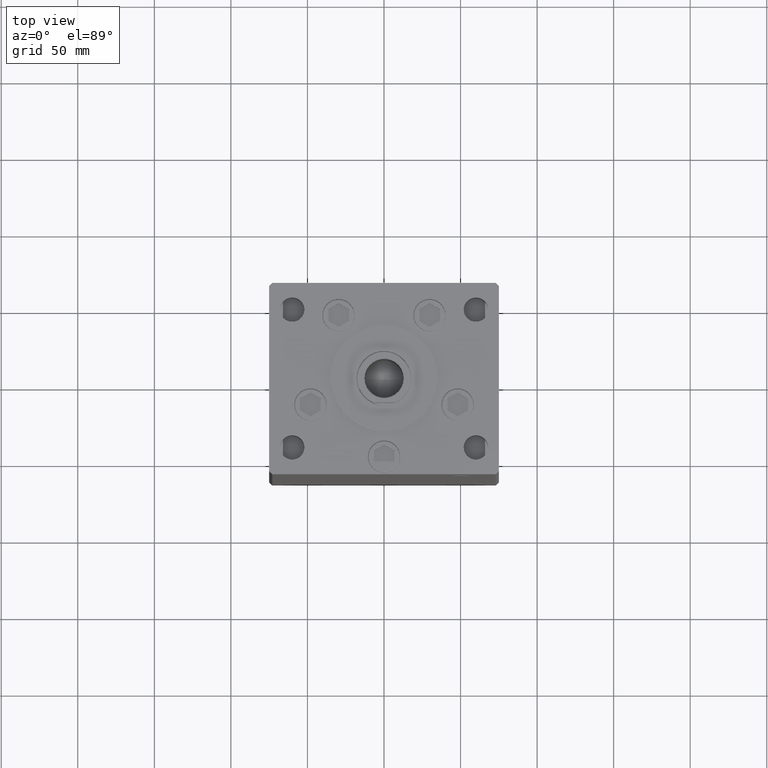
[diagram: clean part render]
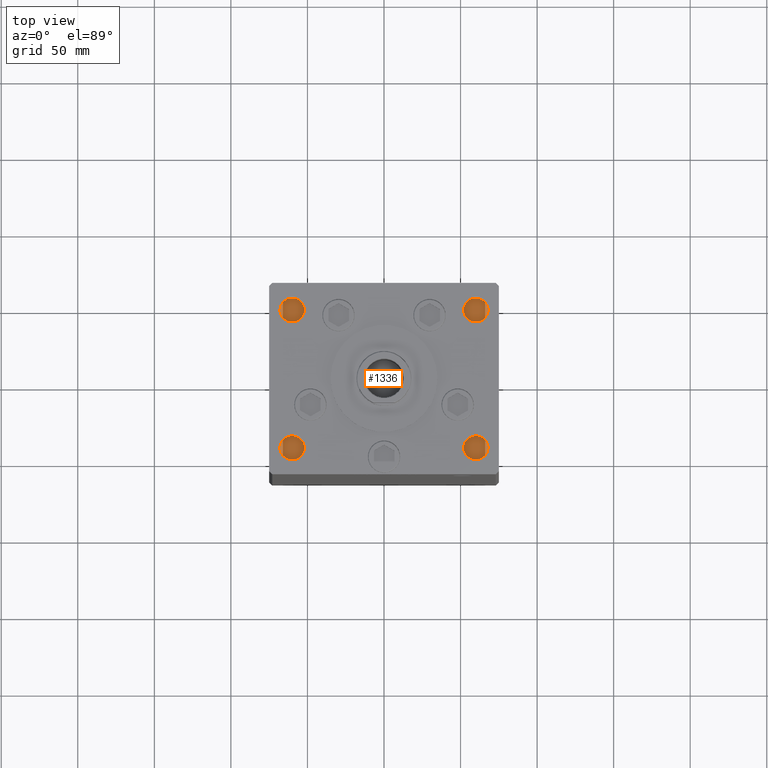
[diagram: same view with one face highlighted and labeled with its STEP entity id]
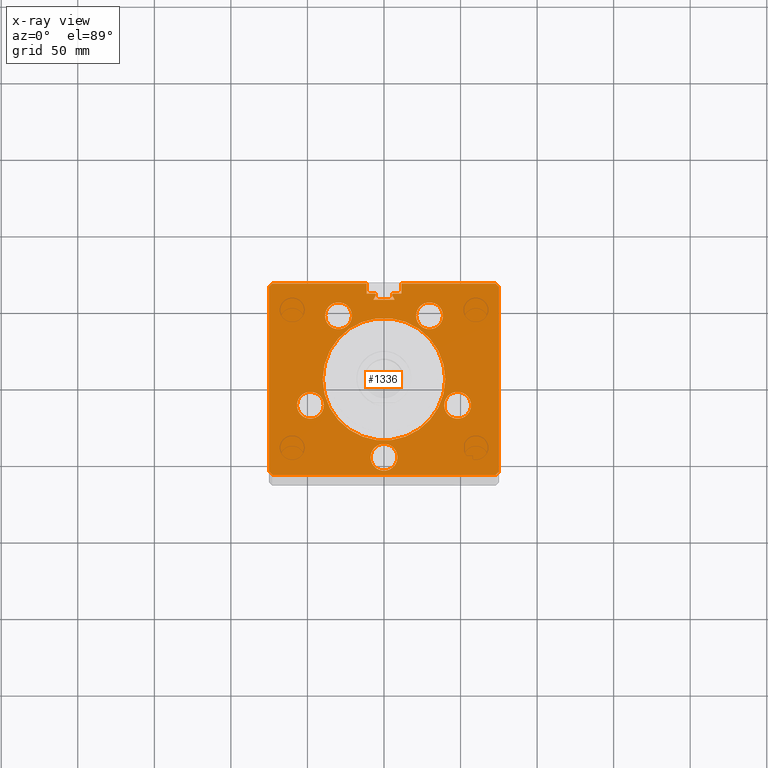
[diagram: x-ray of the same camera — body ghosted, the highlighted face saturated]
A machine part, top view. The second image highlights one B-rep face of the part: STEP entity #1336.
The next image is the same camera in x-ray: the body ghosted, the highlighted face saturated — about 0% of this face is hidden behind the body in this view.
In plain terms, the highlighted planar face has unit normal (0, 0, -1).
Its self-contained STEP definition (entity closure, byte-faithful):
#52 = VECTOR ( 'NONE', #40078, 1000.000000000000000 ) ;
#159 = LINE ( 'NONE', #31782, #52127 ) ;
#290 = VERTEX_POINT ( 'NONE', #27565 ) ;
#529 = CIRCLE ( 'NONE', #8970, 8.750000000000000000 ) ;
#699 = VERTEX_POINT ( 'NONE', #27439 ) ;
#764 = VECTOR ( 'NONE', #22030, 1000.000000000000000 ) ;
#774 = AXIS2_PLACEMENT_3D ( 'NONE', #49471, #10483, #46554 ) ;
#1010 = ORIENTED_EDGE ( 'NONE', *, *, #14555, .F. ) ;
#1336 = ADVANCED_FACE ( 'NONE', ( #14596, #6442, #26484, #5670, #29640, #45966, #38306 ), #22497, .F. ) ;
#1591 = CARTESIAN_POINT ( 'NONE',  ( 0.000000000000000000, 0.000000000000000000, 367.0000000000000000 ) ) ;
#1671 = CIRCLE ( 'NONE', #50448, 8.750000000000000000 ) ;
#1843 = CARTESIAN_POINT ( 'NONE',  ( 11.25000000000000178, 55.99999999999999289, 367.0000000000000000 ) ) ;
#1967 = CARTESIAN_POINT ( 'NONE',  ( 75.00000000000001421, 60.50000000000000000, 367.0000000000000000 ) ) ;
#2140 = EDGE_CURVE ( 'NONE', #19632, #45822, #30423, .T. ) ;
#2162 = VERTEX_POINT ( 'NONE', #12931 ) ;
#2221 = DIRECTION ( 'NONE',  ( -2.293849224432141861E-16, -1.000000000000000000, 0.000000000000000000 ) ) ;
#2527 = EDGE_CURVE ( 'NONE', #37859, #45580, #23500, .T. ) ;
#2721 = VERTEX_POINT ( 'NONE', #15976 ) ;
#3052 = CARTESIAN_POINT ( 'NONE',  ( -48.08326112068523628, -17.00000000000000000, 367.0000000000000000 ) ) ;
#3204 = CARTESIAN_POINT ( 'NONE',  ( 6.183333333334001480, 55.06666666666598786, 367.0000000000000000 ) ) ;
#3628 = AXIS2_PLACEMENT_3D ( 'NONE', #8127, #16789, #52131 ) ;
#3657 = DIRECTION ( 'NONE',  ( 1.000000000000000000, 0.000000000000000000, 0.000000000000000000 ) ) ;
#3809 = LINE ( 'NONE', #24613, #42550 ) ;
#3973 = DIRECTION ( 'NONE',  ( 1.000000000000000000, 0.000000000000000000, 0.000000000000000000 ) ) ;
#4192 = VECTOR ( 'NONE', #3973, 1000.000000000000000 ) ;
#4246 = VECTOR ( 'NONE', #51578, 1000.000000000000000 ) ;
#5001 = CARTESIAN_POINT ( 'NONE',  ( -11.25000000000000178, 62.49999999999999289, 367.0000000000000000 ) ) ;
#5043 = ORIENTED_EDGE ( 'NONE', *, *, #2140, .F. ) ;
#5111 = CIRCLE ( 'NONE', #37929, 8.750000000000000000 ) ;
#5207 = LINE ( 'NONE', #33394, #39768 ) ;
#5670 = FACE_BOUND ( 'NONE', #7730, .T. ) ;
#5846 = ORIENTED_EDGE ( 'NONE', *, *, #40163, .T. ) ;
#5928 = AXIS2_PLACEMENT_3D ( 'NONE', #22204, #10616, #43005 ) ;
#5984 = DIRECTION ( 'NONE',  ( 0.000000000000000000, 0.000000000000000000, 1.000000000000000000 ) ) ;
#6077 = AXIS2_PLACEMENT_3D ( 'NONE', #22511, #6198, #41772 ) ;
#6198 = DIRECTION ( 'NONE',  ( 0.000000000000000000, 0.000000000000000000, 1.000000000000000000 ) ) ;
#6313 = DIRECTION ( 'NONE',  ( 0.000000000000000000, 0.000000000000000000, 1.000000000000000000 ) ) ;
#6442 = FACE_BOUND ( 'NONE', #36698, .T. ) ;
#6947 = CARTESIAN_POINT ( 'NONE',  ( -29.73102073172060500, 41.43749999999999289, 367.0000000000000000 ) ) ;
#7170 = CARTESIAN_POINT ( 'NONE',  ( 6.876153656360466826, 51.99999999999986500, 367.0000000000000000 ) ) ;
#7491 = ORIENTED_EDGE ( 'NONE', *, *, #12374, .F. ) ;
#7623 = EDGE_CURVE ( 'NONE', #35388, #47255, #40934, .T. ) ;
#7730 = EDGE_LOOP ( 'NONE', ( #29439, #14528 ) ) ;
#7850 = CARTESIAN_POINT ( 'NONE',  ( -11.25000000000000178, 62.49999999999999289, 367.0000000000000000 ) ) ;
#8002 = EDGE_CURVE ( 'NONE', #36408, #12300, #17762, .T. ) ;
#8066 = VERTEX_POINT ( 'NONE', #7850 ) ;
#8127 = CARTESIAN_POINT ( 'NONE',  ( -6.183333333334001480, 55.06666666666598786, 367.0000000000000000 ) ) ;
#8138 = VECTOR ( 'NONE', #19469, 1000.000000000000000 ) ;
#8361 = VERTEX_POINT ( 'NONE', #29678 ) ;
#8552 = DIRECTION ( 'NONE',  ( 0.5000000000000016653, -0.8660254037844377084, 0.000000000000000000 ) ) ;
#8737 = EDGE_CURVE ( 'NONE', #14582, #24960, #32115, .T. ) ;
#8834 = LINE ( 'NONE', #24899, #39036 ) ;
#8970 = AXIS2_PLACEMENT_3D ( 'NONE', #19447, #23412, #3657 ) ;
#9065 = ORIENTED_EDGE ( 'NONE', *, *, #46245, .F. ) ;
#9084 = ORIENTED_EDGE ( 'NONE', *, *, #19905, .T. ) ;
#9340 = ORIENTED_EDGE ( 'NONE', *, *, #26878, .F. ) ;
#9474 = EDGE_CURVE ( 'NONE', #45822, #2721, #33571, .T. ) ;
#9594 = ORIENTED_EDGE ( 'NONE', *, *, #42329, .F. ) ;
#9602 = ORIENTED_EDGE ( 'NONE', *, *, #2527, .F. ) ;
#9723 = CARTESIAN_POINT ( 'NONE',  ( 0.000000000000000000, 0.000000000000000000, 367.0000000000000000 ) ) ;
#9971 = DIRECTION ( 'NONE',  ( -0.000000000000000000, 0.000000000000000000, 1.000000000000000000 ) ) ;
#10223 = VECTOR ( 'NONE', #2221, 1000.000000000000000 ) ;
#10400 = CARTESIAN_POINT ( 'NONE',  ( 0.000000000000000000, 0.000000000000000000, 367.0000000000000000 ) ) ;
#10412 = DIRECTION ( 'NONE',  ( 0.7071067811865474617, -0.7071067811865474617, 0.000000000000000000 ) ) ;
#10483 = DIRECTION ( 'NONE',  ( 0.000000000000000000, 0.000000000000000000, 1.000000000000000000 ) ) ;
#10616 = DIRECTION ( 'NONE',  ( 0.000000000000000000, 0.000000000000000000, 1.000000000000000000 ) ) ;
#11022 = ORIENTED_EDGE ( 'NONE', *, *, #16986, .T. ) ;
#11150 = ORIENTED_EDGE ( 'NONE', *, *, #18624, .T. ) ;
#11572 = CARTESIAN_POINT ( 'NONE',  ( -6.183333333334001480, 55.99999999999999289, 367.0000000000000000 ) ) ;
#11599 = VERTEX_POINT ( 'NONE', #39641 ) ;
#12300 = VERTEX_POINT ( 'NONE', #38372 ) ;
#12374 = EDGE_CURVE ( 'NONE', #16701, #8066, #159, .T. ) ;
#12713 = CARTESIAN_POINT ( 'NONE',  ( -6.183333333334001480, 55.06666666666598786, 367.0000000000000000 ) ) ;
#12931 = CARTESIAN_POINT ( 'NONE',  ( 6.183333333334001480, 55.99999999999999289, 367.0000000000000000 ) ) ;
#13243 = CARTESIAN_POINT ( 'NONE',  ( 39.33326112068523628, -16.99999999999998934, 367.0000000000000000 ) ) ;
#13426 = VERTEX_POINT ( 'NONE', #23299 ) ;
#13883 = DIRECTION ( 'NONE',  ( 1.000000000000000000, 0.000000000000000000, 0.000000000000000000 ) ) ;
#13928 = VERTEX_POINT ( 'NONE', #37679 ) ;
#13933 = EDGE_LOOP ( 'NONE', ( #37747, #1010 ) ) ;
#13943 = EDGE_CURVE ( 'NONE', #12300, #36408, #50450, .T. ) ;
#14061 = DIRECTION ( 'NONE',  ( 0.000000000000000000, 0.000000000000000000, 1.000000000000000000 ) ) ;
#14528 = ORIENTED_EDGE ( 'NONE', *, *, #48772, .F. ) ;
#14555 = EDGE_CURVE ( 'NONE', #36346, #13426, #21897, .T. ) ;
#14582 = VERTEX_POINT ( 'NONE', #32198 ) ;
#14596 = FACE_BOUND ( 'NONE', #13933, .T. ) ;
#14693 = LINE ( 'NONE', #18365, #4246 ) ;
#14703 = DIRECTION ( 'NONE',  ( 1.000000000000000000, 0.000000000000000000, 0.000000000000000000 ) ) ;
#15413 = ORIENTED_EDGE ( 'NONE', *, *, #47820, .T. ) ;
#15423 = DIRECTION ( 'NONE',  ( 0.000000000000000000, 0.000000000000000000, 1.000000000000000000 ) ) ;
#15507 = ORIENTED_EDGE ( 'NONE', *, *, #8002, .F. ) ;
#15685 = AXIS2_PLACEMENT_3D ( 'NONE', #30018, #6313, #33713 ) ;
#15893 = CARTESIAN_POINT ( 'NONE',  ( 75.00000000000001421, 60.50000000000000000, 367.0000000000000000 ) ) ;
#15976 = CARTESIAN_POINT ( 'NONE',  ( 74.99999999999998579, -60.50000000000000000, 367.0000000000000000 ) ) ;
#16007 = VERTEX_POINT ( 'NONE', #34981 ) ;
#16404 = DIRECTION ( 'NONE',  ( 1.000000000000000000, 0.000000000000000000, 0.000000000000000000 ) ) ;
#16701 = VERTEX_POINT ( 'NONE', #48277 ) ;
#16789 = DIRECTION ( 'NONE',  ( 0.000000000000000000, 0.000000000000000000, -1.000000000000000000 ) ) ;
#16986 = EDGE_CURVE ( 'NONE', #37329, #2162, #46012, .T. ) ;
#17055 = EDGE_CURVE ( 'NONE', #33309, #31875, #47822, .T. ) ;
#17093 = EDGE_CURVE ( 'NONE', #13426, #36346, #1671, .T. ) ;
#17227 = CARTESIAN_POINT ( 'NONE',  ( -11.25000000000000178, 55.99999999999999289, 367.0000000000000000 ) ) ;
#17376 = CARTESIAN_POINT ( 'NONE',  ( -56.83326112068523628, -17.00000000000000000, 367.0000000000000000 ) ) ;
#17656 = DIRECTION ( 'NONE',  ( -0.000000000000000000, 0.000000000000000000, 1.000000000000000000 ) ) ;
#17762 = CIRCLE ( 'NONE', #48874, 40.00000000000000000 ) ;
#17974 = AXIS2_PLACEMENT_3D ( 'NONE', #6947, #47767, #47507 ) ;
#18341 = EDGE_CURVE ( 'NONE', #290, #19632, #33197, .T. ) ;
#18365 = CARTESIAN_POINT ( 'NONE',  ( -72.99999999999998579, -62.50000000000000000, 367.0000000000000000 ) ) ;
#18624 = EDGE_CURVE ( 'NONE', #24000, #48432, #30673, .T. ) ;
#18796 = CARTESIAN_POINT ( 'NONE',  ( 0.000000000000000000, 55.99999999999999289, 367.0000000000000000 ) ) ;
#18998 = CARTESIAN_POINT ( 'NONE',  ( 20.98102073172059789, 41.43750000000000000, 367.0000000000000000 ) ) ;
#19255 = DIRECTION ( 'NONE',  ( 0.000000000000000000, 0.000000000000000000, -1.000000000000000000 ) ) ;
#19364 = ORIENTED_EDGE ( 'NONE', *, *, #27120, .F. ) ;
#19447 = CARTESIAN_POINT ( 'NONE',  ( 6.245698675651500444E-15, -51.00000000000000000, 367.0000000000000000 ) ) ;
#19469 = DIRECTION ( 'NONE',  ( 2.293849224432141861E-16, -1.000000000000000000, 0.000000000000000000 ) ) ;
#19632 = VERTEX_POINT ( 'NONE', #25393 ) ;
#19676 = CIRCLE ( 'NONE', #49135, 0.9333333333340068094 ) ;
#19813 = ORIENTED_EDGE ( 'NONE', *, *, #26978, .T. ) ;
#19905 = EDGE_CURVE ( 'NONE', #290, #37329, #47982, .T. ) ;
#20914 = EDGE_LOOP ( 'NONE', ( #34866, #9602 ) ) ;
#20953 = VECTOR ( 'NONE', #47028, 999.9999999999998863 ) ;
#21263 = CIRCLE ( 'NONE', #3628, 0.9333333333340068094 ) ;
#21282 = ORIENTED_EDGE ( 'NONE', *, *, #8737, .F. ) ;
#21543 = CIRCLE ( 'NONE', #15685, 8.750000000000000000 ) ;
#21897 = CIRCLE ( 'NONE', #5928, 8.750000000000000000 ) ;
#22030 = DIRECTION ( 'NONE',  ( -1.000000000000000000, 0.000000000000000000, 0.000000000000000000 ) ) ;
#22044 = CARTESIAN_POINT ( 'NONE',  ( -29.73102073172060500, 41.43749999999999289, 367.0000000000000000 ) ) ;
#22204 = CARTESIAN_POINT ( 'NONE',  ( -48.08326112068523628, -17.00000000000000000, 367.0000000000000000 ) ) ;
#22497 = PLANE ( 'NONE',  #36207 ) ;
#22511 = CARTESIAN_POINT ( 'NONE',  ( 29.73102073172059789, 41.43750000000000000, 367.0000000000000000 ) ) ;
#22701 = AXIS2_PLACEMENT_3D ( 'NONE', #3204, #19255, #43775 ) ;
#23299 = CARTESIAN_POINT ( 'NONE',  ( -39.33326112068523628, -17.00000000000000000, 367.0000000000000000 ) ) ;
#23412 = DIRECTION ( 'NONE',  ( 0.000000000000000000, 0.000000000000000000, 1.000000000000000000 ) ) ;
#23500 = CIRCLE ( 'NONE', #774, 8.750000000000000000 ) ;
#24000 = VERTEX_POINT ( 'NONE', #11572 ) ;
#24279 = CARTESIAN_POINT ( 'NONE',  ( 11.25000000000000178, 0.000000000000000000, 367.0000000000000000 ) ) ;
#24436 = EDGE_CURVE ( 'NONE', #40500, #37902, #51508, .T. ) ;
#24613 = CARTESIAN_POINT ( 'NONE',  ( -74.99999999999998579, -60.50000000000000000, 367.0000000000000000 ) ) ;
#24899 = CARTESIAN_POINT ( 'NONE',  ( 0.000000000000000000, 51.99999999999986500, 367.0000000000000000 ) ) ;
#24960 = VERTEX_POINT ( 'NONE', #31000 ) ;
#25337 = CARTESIAN_POINT ( 'NONE',  ( 38.48102073172059789, 41.43750000000000000, 367.0000000000000000 ) ) ;
#25393 = CARTESIAN_POINT ( 'NONE',  ( 73.00000000000001421, 62.50000000000000000, 367.0000000000000000 ) ) ;
#25958 = DIRECTION ( 'NONE',  ( 0.000000000000000000, 0.000000000000000000, -1.000000000000000000 ) ) ;
#26211 = DIRECTION ( 'NONE',  ( -1.000000000000000000, 0.000000000000000000, 0.000000000000000000 ) ) ;
#26215 = AXIS2_PLACEMENT_3D ( 'NONE', #37762, #14061, #41984 ) ;
#26484 = FACE_BOUND ( 'NONE', #20914, .T. ) ;
#26713 = ORIENTED_EDGE ( 'NONE', *, *, #17055, .T. ) ;
#26878 = EDGE_CURVE ( 'NONE', #35451, #31875, #21263, .T. ) ;
#26978 = EDGE_CURVE ( 'NONE', #16701, #13928, #5207, .T. ) ;
#27120 = EDGE_CURVE ( 'NONE', #699, #16007, #31383, .T. ) ;
#27439 = CARTESIAN_POINT ( 'NONE',  ( -20.98102073172060500, 41.43749999999999289, 367.0000000000000000 ) ) ;
#27559 = ORIENTED_EDGE ( 'NONE', *, *, #35905, .T. ) ;
#27565 = CARTESIAN_POINT ( 'NONE',  ( 11.24999999999999467, 62.49999999999999289, 367.0000000000000000 ) ) ;
#27818 = DIRECTION ( 'NONE',  ( 1.000000000000000000, 0.000000000000000000, 0.000000000000000000 ) ) ;
#28149 = CARTESIAN_POINT ( 'NONE',  ( 5.375042956467942723, 54.59999999999898534, 367.0000000000000000 ) ) ;
#28233 = ORIENTED_EDGE ( 'NONE', *, *, #18341, .F. ) ;
#28603 = AXIS2_PLACEMENT_3D ( 'NONE', #1591, #17656, #49809 ) ;
#29439 = ORIENTED_EDGE ( 'NONE', *, *, #24436, .F. ) ;
#29640 = FACE_BOUND ( 'NONE', #38796, .T. ) ;
#29678 = CARTESIAN_POINT ( 'NONE',  ( -74.99999999999998579, -60.50000000000000000, 367.0000000000000000 ) ) ;
#29775 = EDGE_CURVE ( 'NONE', #16007, #699, #46604, .T. ) ;
#29917 = EDGE_CURVE ( 'NONE', #24000, #35451, #19676, .T. ) ;
#30018 = CARTESIAN_POINT ( 'NONE',  ( 48.08326112068523628, -16.99999999999998934, 367.0000000000000000 ) ) ;
#30262 = CARTESIAN_POINT ( 'NONE',  ( -72.99999999999998579, -62.50000000000000000, 367.0000000000000000 ) ) ;
#30323 = CARTESIAN_POINT ( 'NONE',  ( 74.99999999999998579, -60.50000000000000000, 367.0000000000000000 ) ) ;
#30423 = LINE ( 'NONE', #46484, #36131 ) ;
#30521 = AXIS2_PLACEMENT_3D ( 'NONE', #22044, #5984, #13883 ) ;
#30673 = LINE ( 'NONE', #18796, #37869 ) ;
#30967 = ORIENTED_EDGE ( 'NONE', *, *, #29917, .F. ) ;
#31000 = CARTESIAN_POINT ( 'NONE',  ( -8.749999999999994671, -51.00000000000000000, 367.0000000000000000 ) ) ;
#31184 = EDGE_LOOP ( 'NONE', ( #11150, #38234, #7491, #19813, #45059, #5846, #15413, #34907, #32972, #5043, #28233, #9084, #11022, #9065, #51507, #27559, #26713, #9340, #30967 ) ) ;
#31301 = CARTESIAN_POINT ( 'NONE',  ( -5.249999999999994671, 55.06666666666598786, 367.0000000000000000 ) ) ;
#31383 = CIRCLE ( 'NONE', #30521, 8.750000000000000000 ) ;
#31604 = CARTESIAN_POINT ( 'NONE',  ( -75.00000000000001421, 60.50000000000000000, 367.0000000000000000 ) ) ;
#31782 = CARTESIAN_POINT ( 'NONE',  ( -11.25000000000000178, 62.49999999999999289, 367.0000000000000000 ) ) ;
#31816 = CARTESIAN_POINT ( 'NONE',  ( 29.73102073172059789, 41.43750000000000000, 367.0000000000000000 ) ) ;
#31875 = VERTEX_POINT ( 'NONE', #42762 ) ;
#32115 = CIRCLE ( 'NONE', #26215, 8.750000000000000000 ) ;
#32198 = CARTESIAN_POINT ( 'NONE',  ( 8.750000000000007105, -51.00000000000000000, 367.0000000000000000 ) ) ;
#32298 = CARTESIAN_POINT ( 'NONE',  ( 56.83326112068523628, -16.99999999999998934, 367.0000000000000000 ) ) ;
#32936 = ORIENTED_EDGE ( 'NONE', *, *, #29775, .F. ) ;
#32972 = ORIENTED_EDGE ( 'NONE', *, *, #9474, .F. ) ;
#33197 = LINE ( 'NONE', #5001, #4192 ) ;
#33309 = VERTEX_POINT ( 'NONE', #34746 ) ;
#33382 = LINE ( 'NONE', #49193, #43256 ) ;
#33394 = CARTESIAN_POINT ( 'NONE',  ( -73.00000000000001421, 62.50000000000000000, 367.0000000000000000 ) ) ;
#33571 = LINE ( 'NONE', #1967, #10223 ) ;
#33713 = DIRECTION ( 'NONE',  ( 1.000000000000000000, 0.000000000000000000, 0.000000000000000000 ) ) ;
#34746 = CARTESIAN_POINT ( 'NONE',  ( -6.876153656360466826, 51.99999999999986500, 367.0000000000000000 ) ) ;
#34866 = ORIENTED_EDGE ( 'NONE', *, *, #42148, .F. ) ;
#34907 = ORIENTED_EDGE ( 'NONE', *, *, #34974, .F. ) ;
#34974 = EDGE_CURVE ( 'NONE', #2721, #11599, #46898, .T. ) ;
#34981 = CARTESIAN_POINT ( 'NONE',  ( -38.48102073172060500, 41.43749999999999289, 367.0000000000000000 ) ) ;
#35241 = VERTEX_POINT ( 'NONE', #30262 ) ;
#35388 = VERTEX_POINT ( 'NONE', #28149 ) ;
#35451 = VERTEX_POINT ( 'NONE', #31301 ) ;
#35545 = EDGE_CURVE ( 'NONE', #48432, #8066, #33382, .T. ) ;
#35905 = EDGE_CURVE ( 'NONE', #47255, #33309, #8834, .T. ) ;
#36131 = VECTOR ( 'NONE', #10412, 1000.000000000000114 ) ;
#36207 = AXIS2_PLACEMENT_3D ( 'NONE', #10400, #25958, #46214 ) ;
#36346 = VERTEX_POINT ( 'NONE', #17376 ) ;
#36408 = VERTEX_POINT ( 'NONE', #46599 ) ;
#36698 = EDGE_LOOP ( 'NONE', ( #21282, #9594 ) ) ;
#37056 = DIRECTION ( 'NONE',  ( 1.000000000000000000, 0.000000000000000000, 0.000000000000000000 ) ) ;
#37329 = VERTEX_POINT ( 'NONE', #1843 ) ;
#37679 = CARTESIAN_POINT ( 'NONE',  ( -75.00000000000001421, 60.50000000000000000, 367.0000000000000000 ) ) ;
#37747 = ORIENTED_EDGE ( 'NONE', *, *, #17093, .F. ) ;
#37762 = CARTESIAN_POINT ( 'NONE',  ( 6.245698675651500444E-15, -51.00000000000000000, 367.0000000000000000 ) ) ;
#37859 = VERTEX_POINT ( 'NONE', #13243 ) ;
#37869 = VECTOR ( 'NONE', #26211, 1000.000000000000000 ) ;
#37902 = VERTEX_POINT ( 'NONE', #18998 ) ;
#37929 = AXIS2_PLACEMENT_3D ( 'NONE', #31816, #48145, #37056 ) ;
#38210 = VECTOR ( 'NONE', #50341, 1000.000000000000114 ) ;
#38234 = ORIENTED_EDGE ( 'NONE', *, *, #35545, .T. ) ;
#38306 = FACE_BOUND ( 'NONE', #51324, .T. ) ;
#38372 = CARTESIAN_POINT ( 'NONE',  ( 40.00000000000000000, 4.898587196589413026E-15, 367.0000000000000000 ) ) ;
#38677 = CIRCLE ( 'NONE', #22701, 0.9333333333340068094 ) ;
#38796 = EDGE_LOOP ( 'NONE', ( #19364, #32936 ) ) ;
#39036 = VECTOR ( 'NONE', #41488, 1000.000000000000000 ) ;
#39641 = CARTESIAN_POINT ( 'NONE',  ( 72.99999999999998579, -62.50000000000000000, 367.0000000000000000 ) ) ;
#39768 = VECTOR ( 'NONE', #49714, 1000.000000000000114 ) ;
#40078 = DIRECTION ( 'NONE',  ( -0.000000000000000000, -1.000000000000000000, 0.000000000000000000 ) ) ;
#40163 = EDGE_CURVE ( 'NONE', #8361, #35241, #3809, .T. ) ;
#40484 = VECTOR ( 'NONE', #8552, 999.9999999999998863 ) ;
#40500 = VERTEX_POINT ( 'NONE', #25337 ) ;
#40934 = LINE ( 'NONE', #44636, #40484 ) ;
#41151 = DIRECTION ( 'NONE',  ( 0.000000000000000000, 0.000000000000000000, -1.000000000000000000 ) ) ;
#41488 = DIRECTION ( 'NONE',  ( -1.000000000000000000, 0.000000000000000000, 0.000000000000000000 ) ) ;
#41772 = DIRECTION ( 'NONE',  ( 1.000000000000000000, 0.000000000000000000, 0.000000000000000000 ) ) ;
#41984 = DIRECTION ( 'NONE',  ( 1.000000000000000000, 0.000000000000000000, 0.000000000000000000 ) ) ;
#42055 = CARTESIAN_POINT ( 'NONE',  ( 0.000000000000000000, 55.99999999999999289, 367.0000000000000000 ) ) ;
#42148 = EDGE_CURVE ( 'NONE', #45580, #37859, #21543, .T. ) ;
#42329 = EDGE_CURVE ( 'NONE', #24960, #14582, #529, .T. ) ;
#42550 = VECTOR ( 'NONE', #48569, 1000.000000000000114 ) ;
#42762 = CARTESIAN_POINT ( 'NONE',  ( -5.375042956467940947, 54.59999999999898534, 366.9999999999999432 ) ) ;
#43005 = DIRECTION ( 'NONE',  ( 1.000000000000000000, 0.000000000000000000, 0.000000000000000000 ) ) ;
#43256 = VECTOR ( 'NONE', #48930, 1000.000000000000000 ) ;
#43775 = DIRECTION ( 'NONE',  ( 1.000000000000000000, 0.000000000000000000, 0.000000000000000000 ) ) ;
#43903 = EDGE_CURVE ( 'NONE', #13928, #8361, #51632, .T. ) ;
#44636 = CARTESIAN_POINT ( 'NONE',  ( 27.67377574066573942, 15.97746187336676904, 367.0000000000000000 ) ) ;
#45059 = ORIENTED_EDGE ( 'NONE', *, *, #43903, .T. ) ;
#45580 = VERTEX_POINT ( 'NONE', #32298 ) ;
#45822 = VERTEX_POINT ( 'NONE', #15893 ) ;
#45966 = FACE_OUTER_BOUND ( 'NONE', #31184, .T. ) ;
#46012 = LINE ( 'NONE', #42055, #764 ) ;
#46214 = DIRECTION ( 'NONE',  ( -1.000000000000000000, 0.000000000000000000, -0.000000000000000000 ) ) ;
#46245 = EDGE_CURVE ( 'NONE', #35388, #2162, #38677, .T. ) ;
#46484 = CARTESIAN_POINT ( 'NONE',  ( 73.00000000000001421, 62.50000000000000000, 367.0000000000000000 ) ) ;
#46554 = DIRECTION ( 'NONE',  ( 1.000000000000000000, 0.000000000000000000, 0.000000000000000000 ) ) ;
#46599 = CARTESIAN_POINT ( 'NONE',  ( -40.00000000000000000, 0.000000000000000000, 367.0000000000000000 ) ) ;
#46604 = CIRCLE ( 'NONE', #17974, 8.750000000000000000 ) ;
#46698 = ORIENTED_EDGE ( 'NONE', *, *, #13943, .F. ) ;
#46898 = LINE ( 'NONE', #30323, #38210 ) ;
#47028 = DIRECTION ( 'NONE',  ( 0.5000000000000016653, 0.8660254037844377084, 0.000000000000000000 ) ) ;
#47255 = VERTEX_POINT ( 'NONE', #7170 ) ;
#47322 = DIRECTION ( 'NONE',  ( 1.000000000000000000, 0.000000000000000000, 0.000000000000000000 ) ) ;
#47507 = DIRECTION ( 'NONE',  ( 1.000000000000000000, 0.000000000000000000, 0.000000000000000000 ) ) ;
#47767 = DIRECTION ( 'NONE',  ( 0.000000000000000000, 0.000000000000000000, 1.000000000000000000 ) ) ;
#47820 = EDGE_CURVE ( 'NONE', #35241, #11599, #14693, .T. ) ;
#47822 = LINE ( 'NONE', #51794, #20953 ) ;
#47982 = LINE ( 'NONE', #24279, #52 ) ;
#48145 = DIRECTION ( 'NONE',  ( 0.000000000000000000, 0.000000000000000000, 1.000000000000000000 ) ) ;
#48277 = CARTESIAN_POINT ( 'NONE',  ( -73.00000000000001421, 62.50000000000000000, 367.0000000000000000 ) ) ;
#48432 = VERTEX_POINT ( 'NONE', #17227 ) ;
#48569 = DIRECTION ( 'NONE',  ( 0.7071067811865474617, -0.7071067811865474617, 0.000000000000000000 ) ) ;
#48772 = EDGE_CURVE ( 'NONE', #37902, #40500, #5111, .T. ) ;
#48874 = AXIS2_PLACEMENT_3D ( 'NONE', #9723, #9971, #14703 ) ;
#48930 = DIRECTION ( 'NONE',  ( 0.000000000000000000, 1.000000000000000000, 0.000000000000000000 ) ) ;
#49135 = AXIS2_PLACEMENT_3D ( 'NONE', #12713, #41151, #16404 ) ;
#49193 = CARTESIAN_POINT ( 'NONE',  ( -11.25000000000000178, 0.000000000000000000, 367.0000000000000000 ) ) ;
#49471 = CARTESIAN_POINT ( 'NONE',  ( 48.08326112068523628, -16.99999999999998934, 367.0000000000000000 ) ) ;
#49714 = DIRECTION ( 'NONE',  ( -0.7071067811865474617, -0.7071067811865474617, 0.000000000000000000 ) ) ;
#49809 = DIRECTION ( 'NONE',  ( 1.000000000000000000, 0.000000000000000000, 0.000000000000000000 ) ) ;
#50341 = DIRECTION ( 'NONE',  ( -0.7071067811865474617, -0.7071067811865474617, 0.000000000000000000 ) ) ;
#50448 = AXIS2_PLACEMENT_3D ( 'NONE', #3052, #15423, #27818 ) ;
#50450 = CIRCLE ( 'NONE', #28603, 40.00000000000000000 ) ;
#51324 = EDGE_LOOP ( 'NONE', ( #15507, #46698 ) ) ;
#51507 = ORIENTED_EDGE ( 'NONE', *, *, #7623, .T. ) ;
#51508 = CIRCLE ( 'NONE', #6077, 8.750000000000000000 ) ;
#51578 = DIRECTION ( 'NONE',  ( 1.000000000000000000, 0.000000000000000000, 0.000000000000000000 ) ) ;
#51632 = LINE ( 'NONE', #31604, #8138 ) ;
#51794 = CARTESIAN_POINT ( 'NONE',  ( -27.67377574066573942, 15.97746187336676904, 367.0000000000000000 ) ) ;
#52127 = VECTOR ( 'NONE', #47322, 1000.000000000000000 ) ;
#52131 = DIRECTION ( 'NONE',  ( 1.000000000000000000, 0.000000000000000000, 0.000000000000000000 ) ) ;